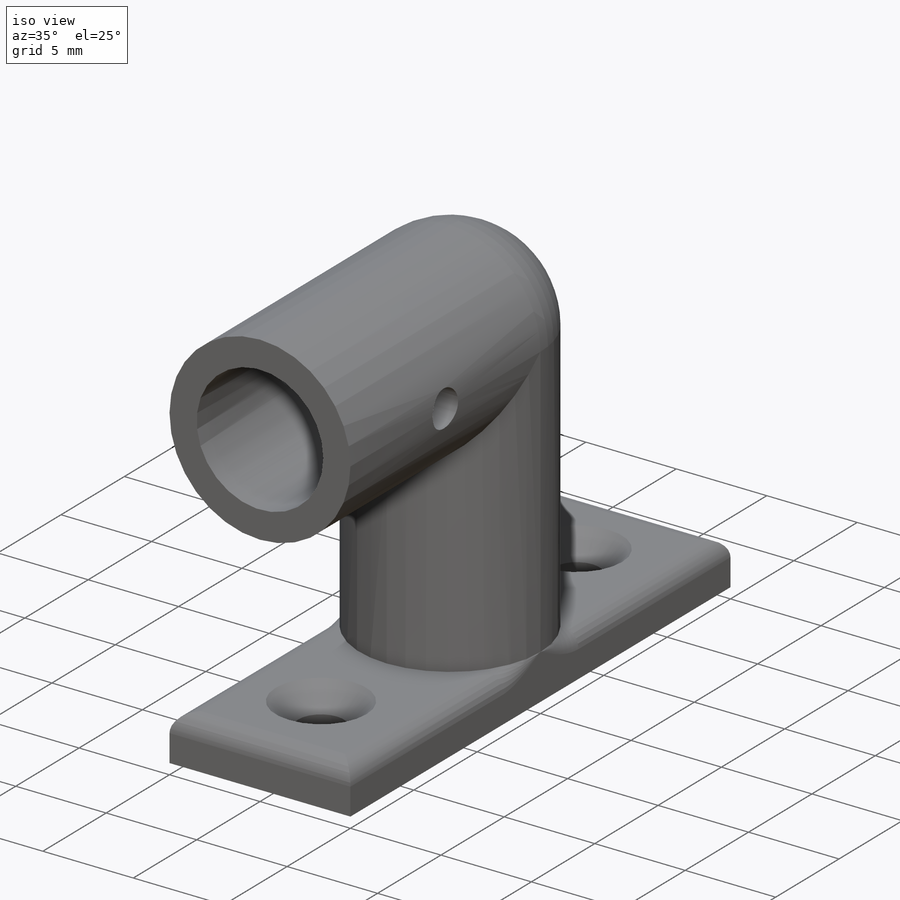
[diagram: iso view]
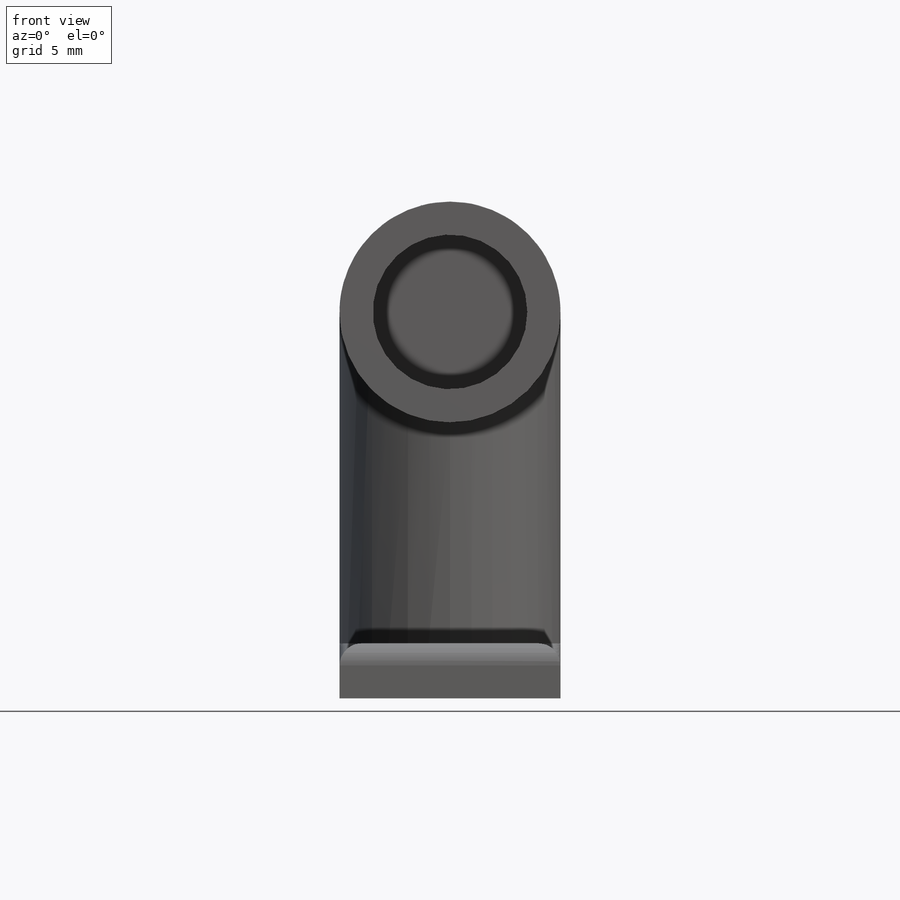
[diagram: front view]
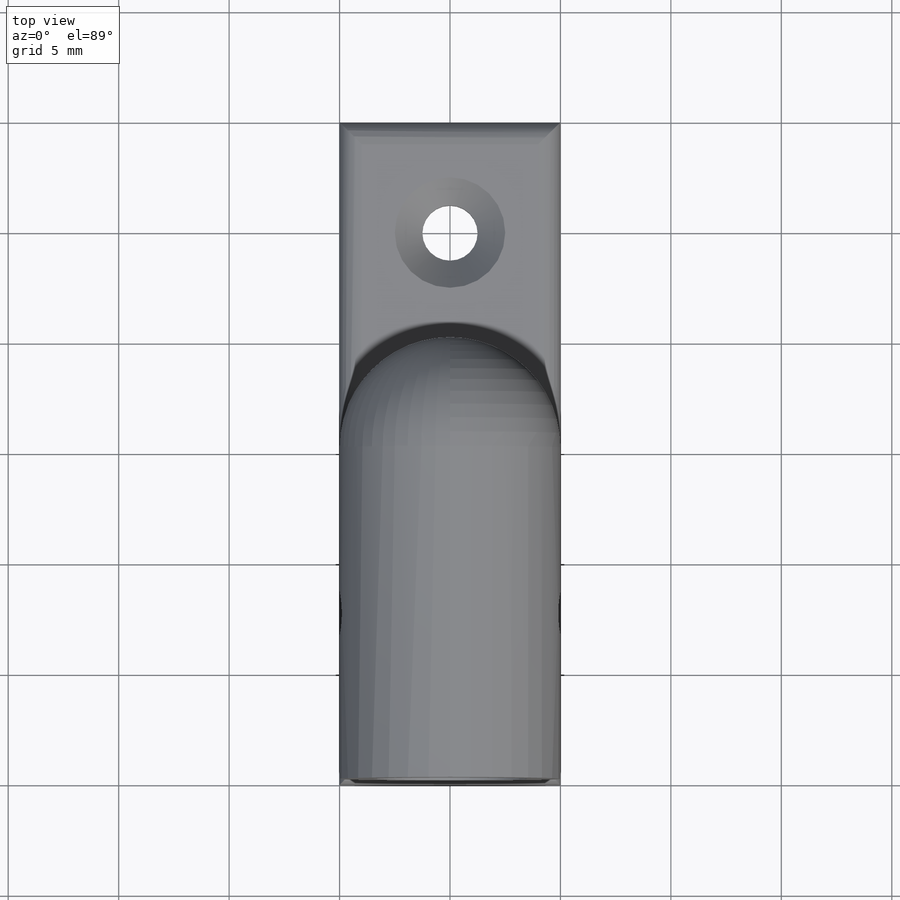
[diagram: top view]
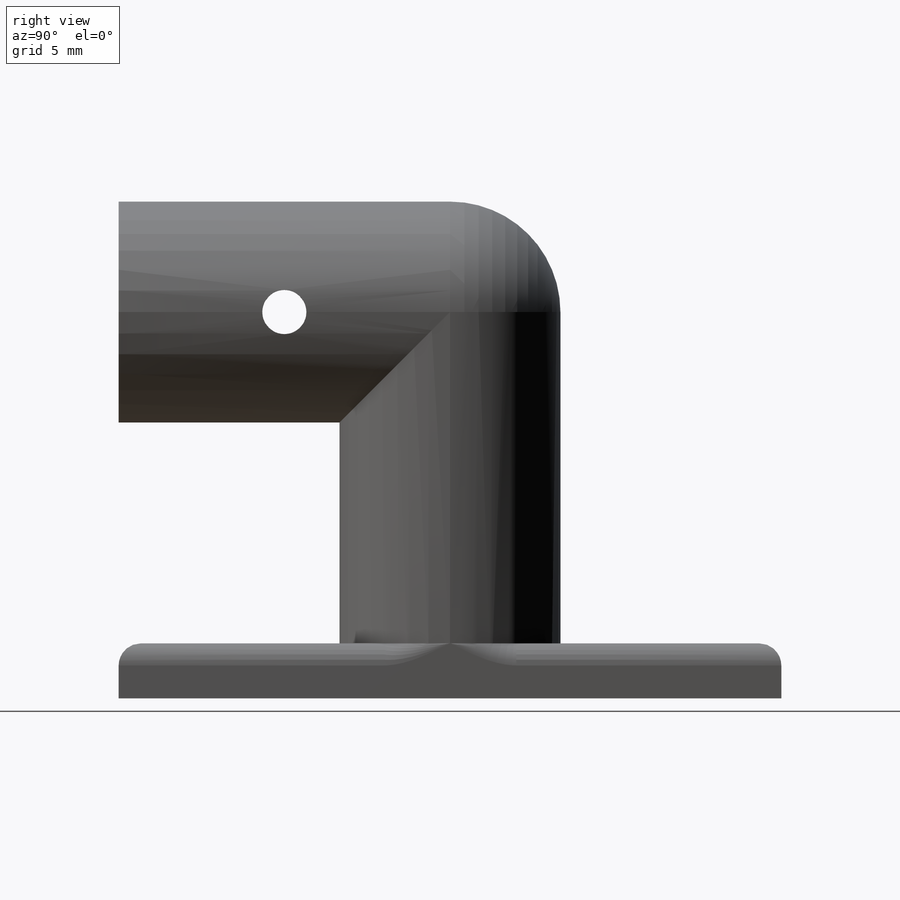
[diagram: right view]
SOLIDWORKS PART (.sldprt)
format: sldprt  version: not decoded by parser v0  size: 301,568 bytes
history: native  units: mm
features: sketch x4, cut_extrude x3, fillet x2, material x1, extrude x1, chamfer x1 (+12 scaffold rows collapsed)
feature tree (24):
  scaffold x12  (default folders/planes/origin — collapsed)
  material  "Material <not specified>"
  sketch  "Sketch1"  dims[c1.D1=0.0mm c1.D2=20.0mm c2.D1=10.0mm c2.D2=10.0mm c2.D3=20.0mm]
  extrude  "Boss-Extrude1"  Depth=10mm
  sketch  "Sketch2"  dims[D1=7.0mm D2=5.0mm D3=5.0mm]
  cut_extrude  "Cut-Extrude1"  Depth=10mm
  fillet  "Fillet1"  Radius=5mm
  sketch  "Sketch3"  dims[c1.D2=~2.191077mm c1.D4=2.5mm c1.D5=2.5mm c1.D1=5.0mm c2.D2=5.0mm c2.D3=5.0mm]
  cut_extrude  "Cut-Extrude2"  Depth=10mm
  chamfer  "Chamfer1"  Distance=1.25mm Angle=45deg
  sketch  "Sketch4"  dims[D1=~1.486704mm]
  cut_extrude  "Cut-Extrude3"  Depth=10mm
  fillet  "Fillet2"  Radius=1mm
decode coverage: 11 of 11 modeling features carry decoded parameters
note: ~ marks probable driven/reference dimensions
note: suppression state not decoded; provenance and decode notes live in map.json
